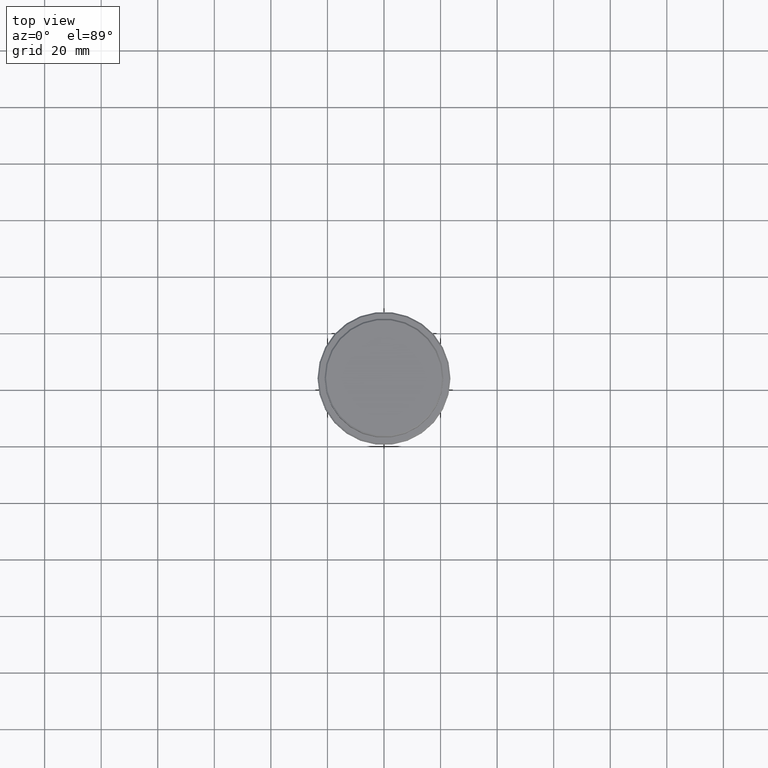
[diagram: clean part render]
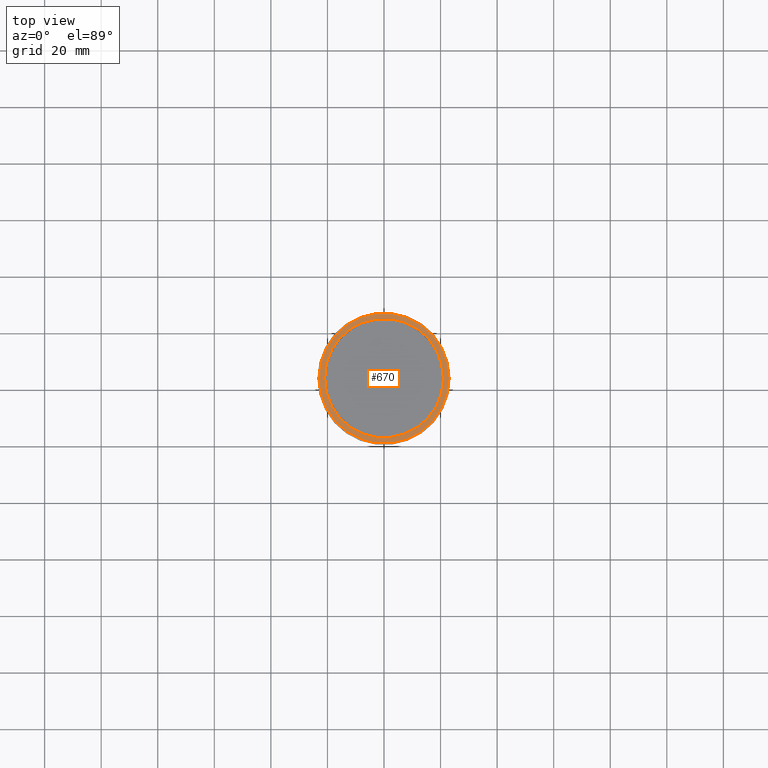
[diagram: same view with one face highlighted and labeled with its STEP entity id]
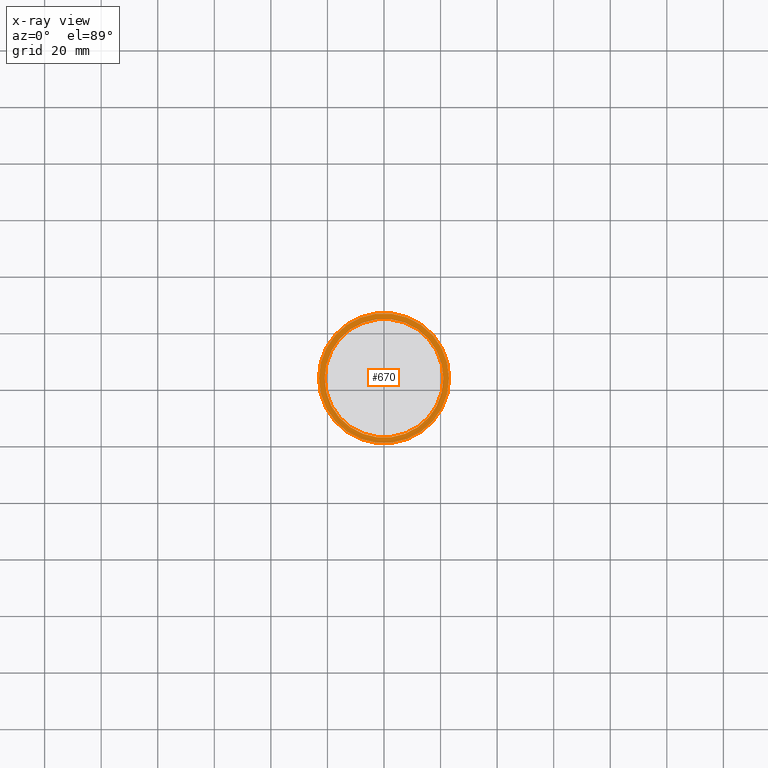
[diagram: x-ray of the same camera — body ghosted, the highlighted face saturated]
A machine part, top view. The second image highlights one B-rep face of the part: STEP entity #670.
The next image is the same camera in x-ray: the body ghosted, the highlighted face saturated — about 0% of this face is hidden behind the body in this view.
In plain terms, the highlighted planar face has unit normal (0, -0, 1).
Its self-contained STEP definition (entity closure, byte-faithful):
#124 = CARTESIAN_POINT ( 'NONE',  ( 0.000000000000000000, 0.000000000000000000, -9.000000000000000000 ) ) ;
#135 = DIRECTION ( 'NONE',  ( 0.000000000000000000, 0.000000000000000000, -1.000000000000000000 ) ) ;
#156 = AXIS2_PLACEMENT_3D ( 'NONE', #1416, #1306, #1199 ) ;
#202 = AXIS2_PLACEMENT_3D ( 'NONE', #124, #430, #1109 ) ;
#269 = CARTESIAN_POINT ( 'NONE',  ( 0.000000000000000000, 0.000000000000000000, -9.000000000000000000 ) ) ;
#280 = ORIENTED_EDGE ( 'NONE', *, *, #1190, .T. ) ;
#283 = DIRECTION ( 'NONE',  ( 1.000000000000000000, 0.000000000000000000, 0.000000000000000000 ) ) ;
#353 = CARTESIAN_POINT ( 'NONE',  ( 0.000000000000000000, 0.000000000000000000, -9.000000000000000000 ) ) ;
#357 = CIRCLE ( 'NONE', #1167, 20.99999999999999289 ) ;
#420 = EDGE_CURVE ( 'NONE', #1177, #1123, #884, .T. ) ;
#430 = DIRECTION ( 'NONE',  ( -0.000000000000000000, -0.000000000000000000, 1.000000000000000000 ) ) ;
#453 = CIRCLE ( 'NONE', #977, 20.99999999999999289 ) ;
#460 = CARTESIAN_POINT ( 'NONE',  ( 20.99999999999999289, 0.000000000000000000, -9.000000000000000000 ) ) ;
#518 = VERTEX_POINT ( 'NONE', #1082 ) ;
#564 = FACE_BOUND ( 'NONE', #697, .T. ) ;
#603 = ORIENTED_EDGE ( 'NONE', *, *, #420, .T. ) ;
#631 = ORIENTED_EDGE ( 'NONE', *, *, #1205, .T. ) ;
#664 = CIRCLE ( 'NONE', #202, 23.00000000000002487 ) ;
#670 = ADVANCED_FACE ( 'NONE', ( #676, #564 ), #1111, .T. ) ;
#676 = FACE_OUTER_BOUND ( 'NONE', #1012, .T. ) ;
#690 = VERTEX_POINT ( 'NONE', #460 ) ;
#697 = EDGE_LOOP ( 'NONE', ( #280, #631 ) ) ;
#711 = AXIS2_PLACEMENT_3D ( 'NONE', #814, #1042, #283 ) ;
#804 = CARTESIAN_POINT ( 'NONE',  ( 23.00000000000002487, 2.847303808017597717E-15, -9.000000000000000000 ) ) ;
#814 = CARTESIAN_POINT ( 'NONE',  ( 0.000000000000000000, 0.000000000000000000, -9.000000000000000000 ) ) ;
#884 = CIRCLE ( 'NONE', #711, 23.00000000000002487 ) ;
#977 = AXIS2_PLACEMENT_3D ( 'NONE', #269, #1119, #1131 ) ;
#1012 = EDGE_LOOP ( 'NONE', ( #1358, #603 ) ) ;
#1013 = DIRECTION ( 'NONE',  ( 1.000000000000000000, 0.000000000000000000, 0.000000000000000000 ) ) ;
#1042 = DIRECTION ( 'NONE',  ( -0.000000000000000000, -0.000000000000000000, 1.000000000000000000 ) ) ;
#1082 = CARTESIAN_POINT ( 'NONE',  ( -20.99999999999999289, 2.571758278209440872E-15, -9.000000000000000000 ) ) ;
#1108 = EDGE_CURVE ( 'NONE', #1123, #1177, #664, .T. ) ;
#1109 = DIRECTION ( 'NONE',  ( 1.000000000000000000, 0.000000000000000000, 0.000000000000000000 ) ) ;
#1111 = PLANE ( 'NONE',  #156 ) ;
#1119 = DIRECTION ( 'NONE',  ( 0.000000000000000000, 0.000000000000000000, -1.000000000000000000 ) ) ;
#1123 = VERTEX_POINT ( 'NONE', #1414 ) ;
#1131 = DIRECTION ( 'NONE',  ( 1.000000000000000000, 0.000000000000000000, 0.000000000000000000 ) ) ;
#1167 = AXIS2_PLACEMENT_3D ( 'NONE', #353, #135, #1013 ) ;
#1177 = VERTEX_POINT ( 'NONE', #804 ) ;
#1190 = EDGE_CURVE ( 'NONE', #690, #518, #453, .T. ) ;
#1199 = DIRECTION ( 'NONE',  ( 1.000000000000000000, 0.000000000000000000, 0.000000000000000000 ) ) ;
#1205 = EDGE_CURVE ( 'NONE', #518, #690, #357, .T. ) ;
#1306 = DIRECTION ( 'NONE',  ( 0.000000000000000000, -0.000000000000000000, 1.000000000000000000 ) ) ;
#1358 = ORIENTED_EDGE ( 'NONE', *, *, #1108, .T. ) ;
#1414 = CARTESIAN_POINT ( 'NONE',  ( -23.00000000000002487, 0.000000000000000000, -9.000000000000000000 ) ) ;
#1416 = CARTESIAN_POINT ( 'NONE',  ( 0.000000000000000000, 20.49999999999999645, -9.000000000000000000 ) ) ;